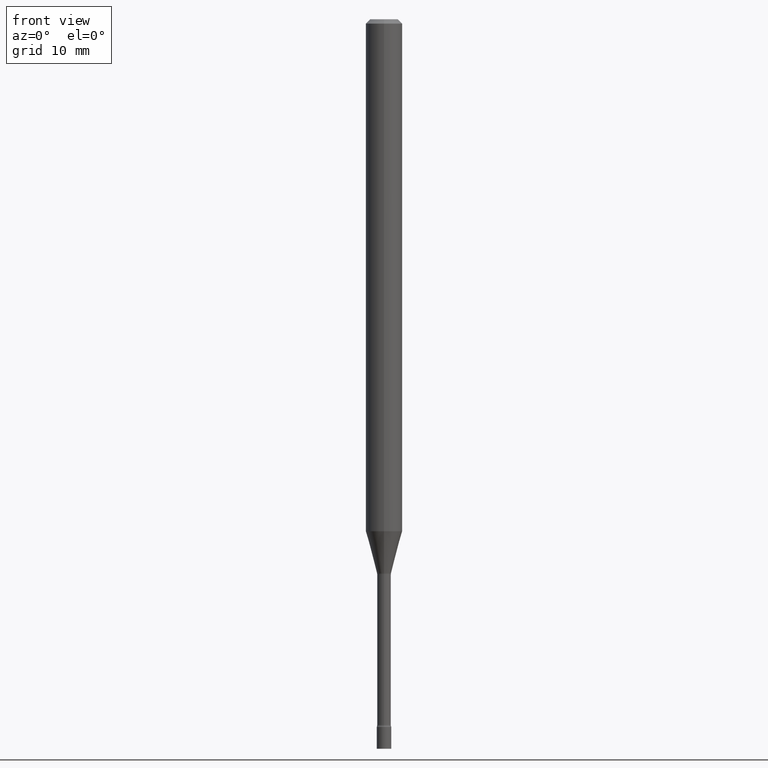
[diagram: clean part render]
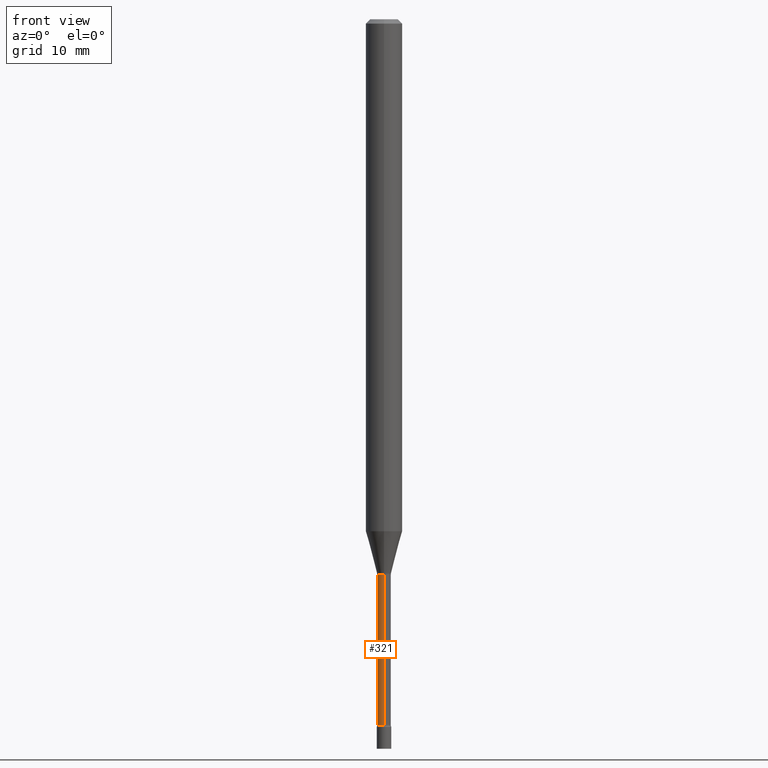
[diagram: same view with one face highlighted and labeled with its STEP entity id]
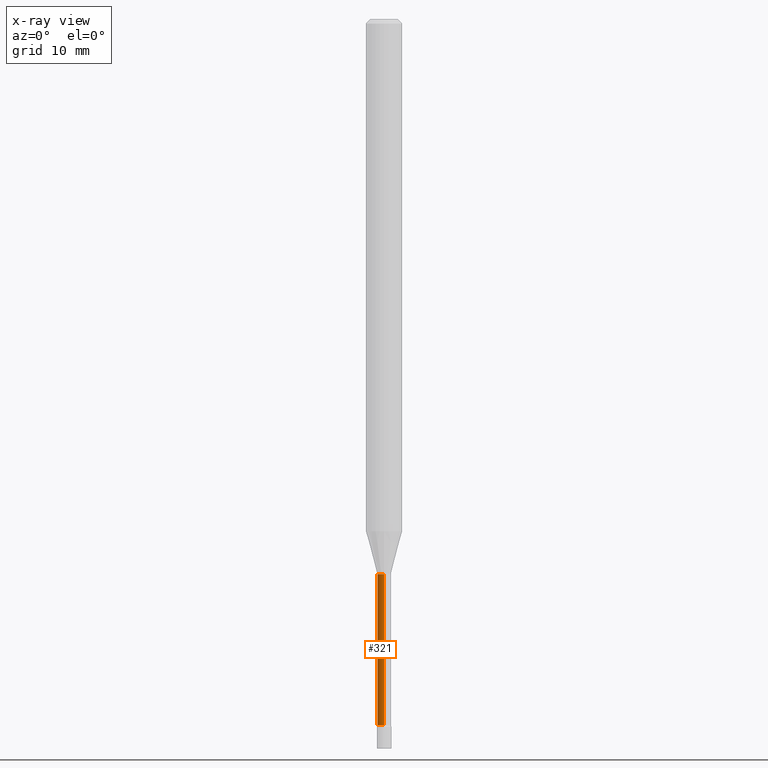
[diagram: x-ray of the same camera — body ghosted, the highlighted face saturated]
A machine part, front view. The second image highlights one B-rep face of the part: STEP entity #321.
The next image is the same camera in x-ray: the body ghosted, the highlighted face saturated — about 0% of this face is hidden behind the body in this view.
In plain terms, the highlighted cylindrical surface (edge-blend (fillet) strip) has radius 0.5969 mm, axis along (-0, 0, 1).
Its self-contained STEP definition (entity closure, byte-faithful):
#11 = DIRECTION ( 'NONE',  ( -6.982962677686266711E-15, -1.000000000000000000, 0.000000000000000000 ) ) ;
#19 = VERTEX_POINT ( 'NONE', #87 ) ;
#21 = FACE_OUTER_BOUND ( 'NONE', #305, .T. ) ;
#28 = CARTESIAN_POINT ( 'NONE',  ( -1.640996229256275231E-16, -0.02350000000000003475, 8.205007746749178948E-17 ) ) ;
#58 = DIRECTION ( 'NONE',  ( -6.982962677686265133E-15, -1.000000000000000000, 0.000000000000000000 ) ) ;
#59 = EDGE_CURVE ( 'NONE', #116, #19, #516, .T. ) ;
#71 = CARTESIAN_POINT ( 'NONE',  ( 1.669775429036237659E-16, 0.02350000000000003475, -8.205007746749178948E-17 ) ) ;
#83 = CIRCLE ( 'NONE', #469, 0.02349999999999999659 ) ;
#85 = VERTEX_POINT ( 'NONE', #89 ) ;
#87 = CARTESIAN_POINT ( 'NONE',  ( -1.640996229255686543E-16, -0.02350000000000852102, -2.418461651584689509 ) ) ;
#89 = CARTESIAN_POINT ( 'NONE',  ( -1.640996229255807091E-16, -0.02350000000000664058, -1.901974787463811323 ) ) ;
#92 = VECTOR ( 'NONE', #195, 39.37007874015748143 ) ;
#112 = ORIENTED_EDGE ( 'NONE', *, *, #153, .T. ) ;
#113 = EDGE_CURVE ( 'NONE', #359, #85, #83, .T. ) ;
#116 = VERTEX_POINT ( 'NONE', #178 ) ;
#153 = EDGE_CURVE ( 'NONE', #19, #85, #374, .T. ) ;
#161 = VECTOR ( 'NONE', #392, 39.37007874015748143 ) ;
#178 = CARTESIAN_POINT ( 'NONE',  ( 1.723066134218837113E-16, 0.02349999999999163522, -2.418461651584689509 ) ) ;
#188 = LINE ( 'NONE', #71, #161 ) ;
#195 = DIRECTION ( 'NONE',  ( -2.445460901926682193E-29, 3.491492658191134624E-15, 1.000000000000000000 ) ) ;
#201 = EDGE_CURVE ( 'NONE', #116, #359, #188, .T. ) ;
#221 = DIRECTION ( 'NONE',  ( -2.445460901926682193E-29, 3.491492658191134624E-15, 1.000000000000000000 ) ) ;
#238 = ORIENTED_EDGE ( 'NONE', *, *, #113, .F. ) ;
#247 = DIRECTION ( 'NONE',  ( -6.982962677686267499E-15, -1.000000000000000000, 3.491492658191134624E-15 ) ) ;
#296 = CARTESIAN_POINT ( 'NONE',  ( 4.651204979193061807E-29, -6.640731006494541112E-15, -1.901974787463811323 ) ) ;
#305 = EDGE_LOOP ( 'NONE', ( #323, #311, #112, #238 ) ) ;
#311 = ORIENTED_EDGE ( 'NONE', *, *, #59, .T. ) ;
#321 = ADVANCED_FACE ( 'NONE', ( #21 ), #394, .T. ) ;
#323 = ORIENTED_EDGE ( 'NONE', *, *, #201, .F. ) ;
#324 = CARTESIAN_POINT ( 'NONE',  ( 1.669775429036828812E-16, 0.02349999999999335606, -1.901974787463811323 ) ) ;
#339 = CARTESIAN_POINT ( 'NONE',  ( 5.914253411759387848E-29, -8.444041100624749086E-15, -2.418461651584689509 ) ) ;
#359 = VERTEX_POINT ( 'NONE', #324 ) ;
#374 = LINE ( 'NONE', #28, #92 ) ;
#378 = DIRECTION ( 'NONE',  ( -2.445460901926682193E-29, 3.491492658191134624E-15, 1.000000000000000000 ) ) ;
#392 = DIRECTION ( 'NONE',  ( -2.445460901926682193E-29, 3.491492658191134624E-15, 1.000000000000000000 ) ) ;
#394 = CYLINDRICAL_SURFACE ( 'NONE', #500, 0.02350000000000003475 ) ;
#406 = AXIS2_PLACEMENT_3D ( 'NONE', #339, #221, #58 ) ;
#407 = DIRECTION ( 'NONE',  ( -2.445460901926682193E-29, 3.491492658191134624E-15, 1.000000000000000000 ) ) ;
#411 = CARTESIAN_POINT ( 'NONE',  ( 0.000000000000000000, 0.000000000000000000, 0.000000000000000000 ) ) ;
#469 = AXIS2_PLACEMENT_3D ( 'NONE', #296, #378, #11 ) ;
#500 = AXIS2_PLACEMENT_3D ( 'NONE', #411, #407, #247 ) ;
#516 = CIRCLE ( 'NONE', #406, 0.02350000000000007985 ) ;